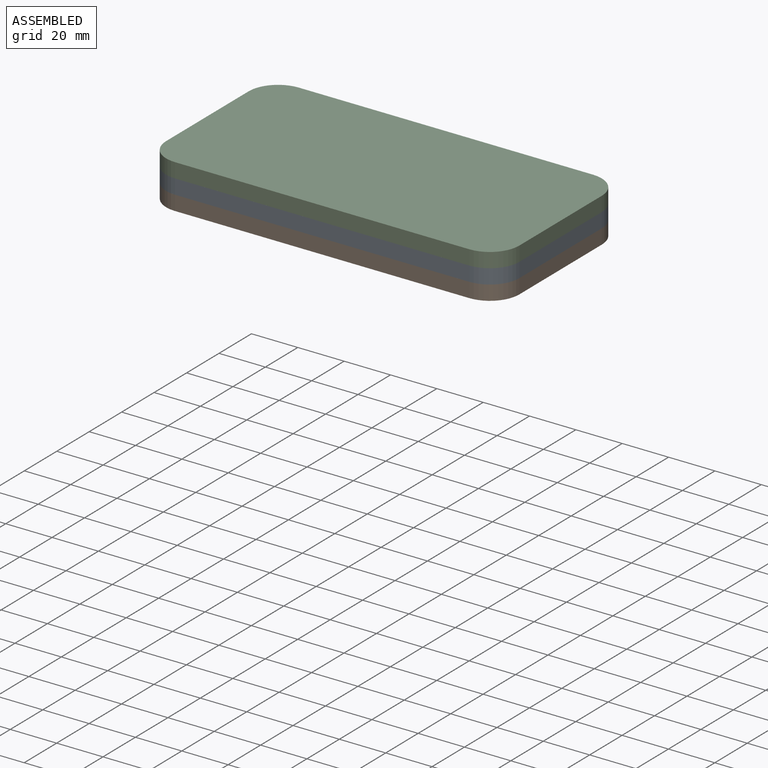
[diagram: assembled view]
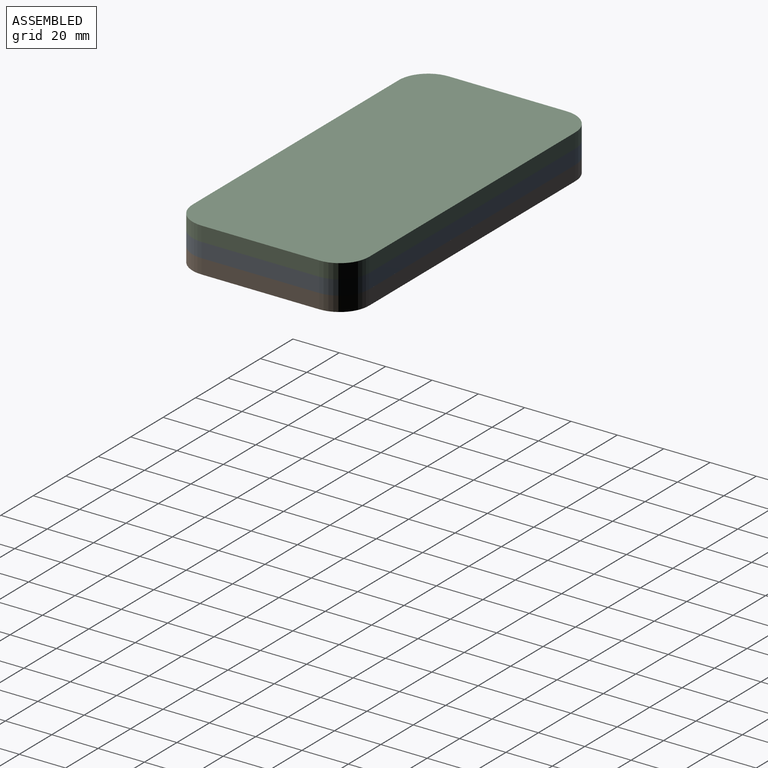
[diagram: assembled view, second angle]
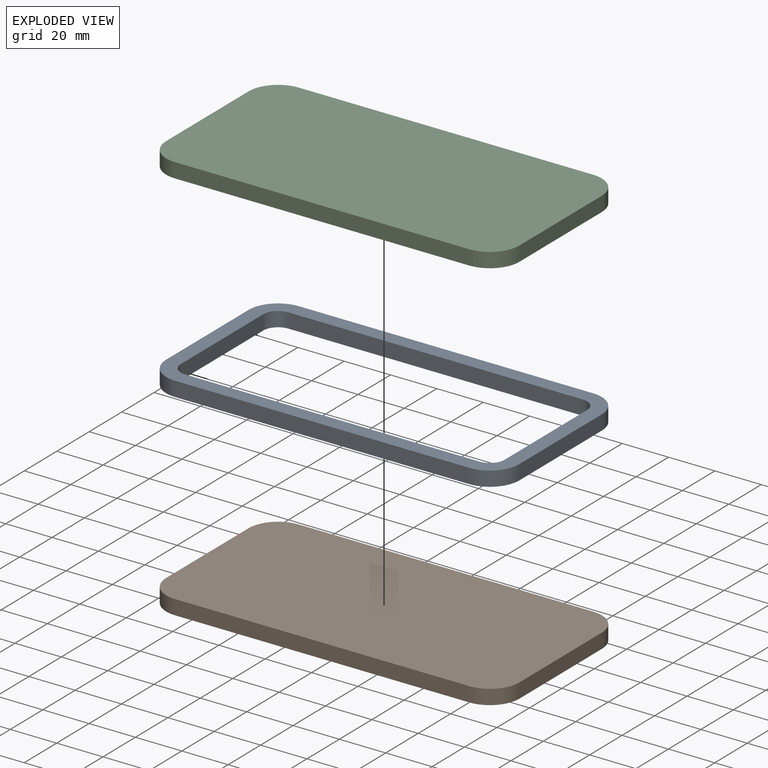
[diagram: exploded view]
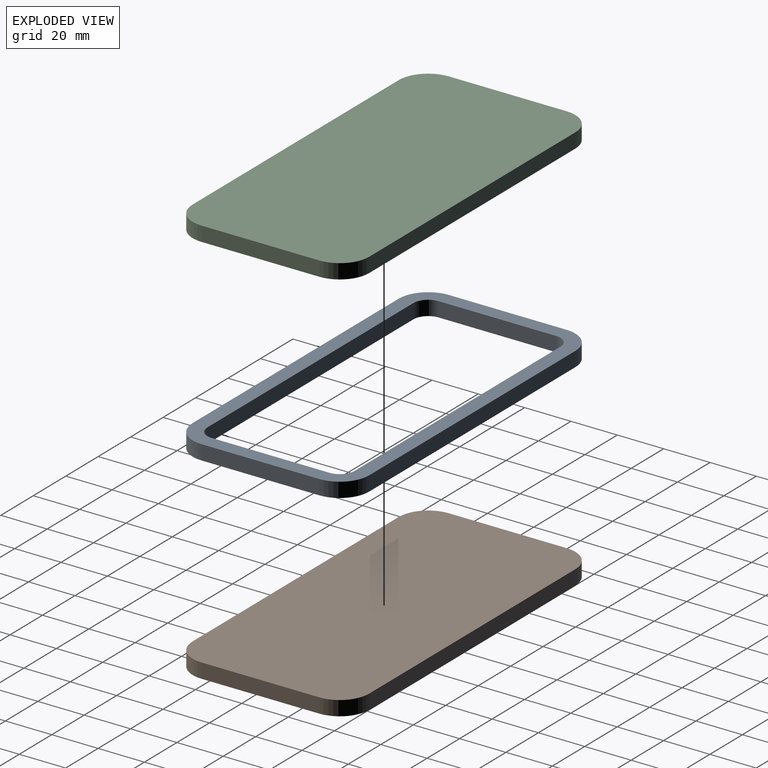
[diagram: exploded view, second angle]
ASSEMBLY  parts=3 mates=2
PART A: 18 faces, bbox 152.4x76.2x6.4 mm
  f0: plane 50.8x6.35mm, normal (1,0,0), area 322.6mm2, adj f1,f15,f16,f17
  f1: cylinder r=12.7mm len=12.7mm, axis (0,0,-1), area 126.7mm2, adj f0,f2,f16,f17
  f2: plane 127x6.35mm, normal (0,1,0), area 806.5mm2, adj f1,f3,f16,f17
  f3: cylinder r=12.7mm len=12.7mm, axis (0,0,-1), area 126.7mm2, adj f2,f4,f16,f17
  f4: plane 50.8x6.35mm, normal (-1,0,0), area 322.6mm2, adj f3,f5,f16,f17
  f5: cylinder r=12.7mm len=12.7mm, axis (0,0,-1), area 126.7mm2, adj f4,f6,f16,f17
  f6: plane 127x6.35mm, normal (0,-1,0), area 806.5mm2, adj f5,f15,f16,f17
  f7: cylinder r=6.35mm len=6.35mm, axis (0,0,-1), area 63.3mm2, adj f8,f14,f16,f17
  f8: plane 50.8x6.35mm, normal (-1,0,0), area 322.6mm2, adj f7,f9,f16,f17
  f9: cylinder r=6.35mm len=6.35mm, axis (0,0,-1), area 63.3mm2, adj f8,f10,f16,f17
  f10: plane 127x6.35mm, normal (0,1,0), area 806.5mm2, adj f9,f11,f16,f17
  f11: cylinder r=6.35mm len=6.35mm, axis (0,0,-1), area 63.3mm2, adj f10,f12,f16,f17
  f12: plane 50.8x6.35mm, normal (1,0,0), area 322.6mm2, adj f11,f13,f16,f17
  f13: cylinder r=6.35mm len=6.35mm, axis (0,0,-1), area 63.3mm2, adj f12,f14,f16,f17
  f14: plane 127x6.35mm, normal (0,-1,0), area 806.5mm2, adj f7,f13,f16,f17
  f15: cylinder r=12.7mm len=12.7mm, axis (0,0,-1), area 126.7mm2, adj f0,f6,f16,f17
  f16: plane 152.4x76.2mm, normal (0,0,1), area 2638.1mm2, adj f0,f1,f2,f3,f4,f5,f6,f7
  f17: plane 152.4x76.2mm, normal (0,0,-1), area 2638.1mm2, adj f0,f1,f2,f3,f4,f5,f6,f7
PART B: 10 faces, bbox 152.4x76.2x6.4 mm
  f0: plane 50.8x6.35mm, normal (1,0,0), area 322.6mm2, adj f1,f7,f8,f9
  f1: cylinder r=12.7mm len=12.7mm, axis (0,0,-1), area 126.7mm2, adj f0,f2,f8,f9
  f2: plane 127x6.35mm, normal (0,1,0), area 806.5mm2, adj f1,f3,f8,f9
  f3: cylinder r=12.7mm len=12.7mm, axis (0,0,-1), area 126.7mm2, adj f2,f4,f8,f9
  f4: plane 50.8x6.35mm, normal (-1,0,0), area 322.6mm2, adj f3,f5,f8,f9
  f5: cylinder r=12.7mm len=12.7mm, axis (0,0,-1), area 126.7mm2, adj f4,f6,f8,f9
  f6: plane 127x6.35mm, normal (0,-1,0), area 806.5mm2, adj f5,f7,f8,f9
  f7: cylinder r=12.7mm len=12.7mm, axis (0,0,-1), area 126.7mm2, adj f0,f6,f8,f9
  f8: plane 152.4x76.2mm, normal (0,0,1), area 11474.4mm2, adj f0,f1,f2,f3,f4,f5,f6,f7
  f9: plane 152.4x76.2mm, normal (0,0,-1), area 11474.4mm2, adj f0,f1,f2,f3,f4,f5,f6,f7
PART C: 10 faces, bbox 152.4x76.2x6.4 mm
  f0: plane 50.8x6.35mm, normal (-1,0,0), area 322.6mm2, adj f1,f7,f8,f9
  f1: cylinder r=12.7mm len=12.7mm, axis (0,0,-1), area 126.7mm2, adj f0,f2,f8,f9
  f2: plane 127x6.35mm, normal (0,-1,0), area 806.5mm2, adj f1,f3,f8,f9
  f3: cylinder r=12.7mm len=12.7mm, axis (0,0,-1), area 126.7mm2, adj f2,f4,f8,f9
  f4: plane 50.8x6.35mm, normal (1,0,0), area 322.6mm2, adj f3,f5,f8,f9
  f5: cylinder r=12.7mm len=12.7mm, axis (0,0,-1), area 126.7mm2, adj f4,f6,f8,f9
  f6: plane 127x6.35mm, normal (0,1,0), area 806.5mm2, adj f5,f7,f8,f9
  f7: cylinder r=12.7mm len=12.7mm, axis (0,0,-1), area 126.7mm2, adj f0,f6,f8,f9
  f8: plane 152.4x76.2mm, normal (0,0,1), area 11474.4mm2, adj f0,f1,f2,f3,f4,f5,f6,f7
  f9: plane 152.4x76.2mm, normal (0,0,-1), area 11474.4mm2, adj f0,f1,f2,f3,f4,f5,f6,f7
PLACE A t=(12.65,-2.39,-7.84)mm
PLACE B t=(52.2,5.76,-14.19)mm
PLACE C t=(39.72,-6.6,-1.49)mm
MATE fastened B.f8 <-> A.f17  axis (0,0,1) through (-23.84,-52.96,-7.84)mm
MATE fastened A.f16 <-> C.f9  axis (0,0,1) through (103.16,-52.96,-1.49)mm
